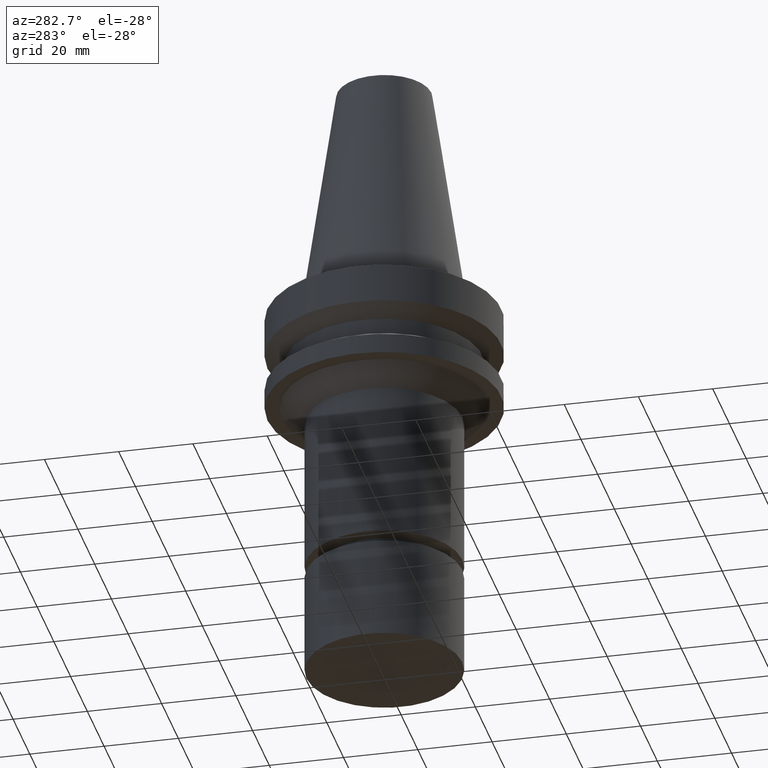
[diagram: clean part render]
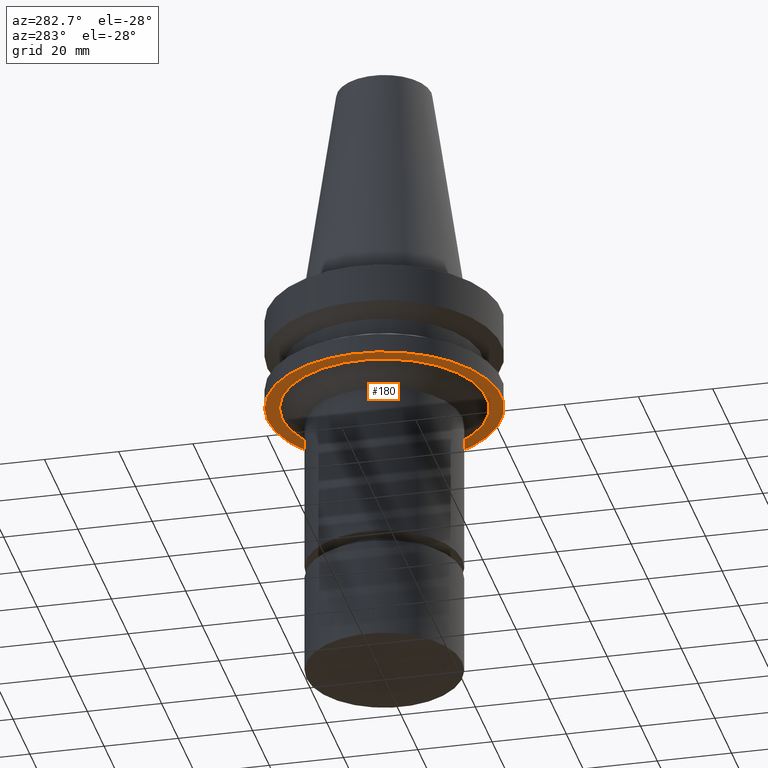
[diagram: same view with one face highlighted and labeled with its STEP entity id]
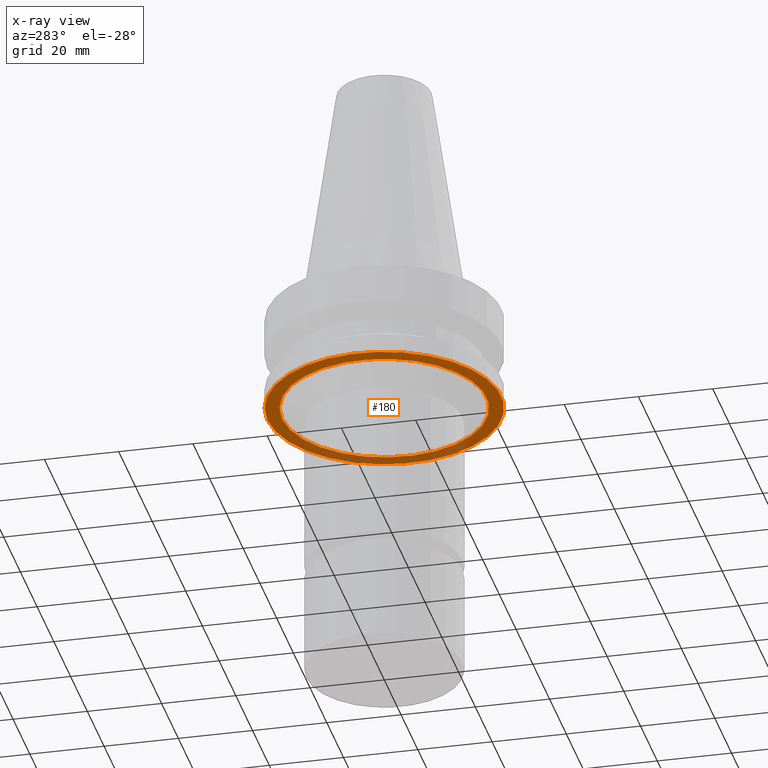
[diagram: x-ray of the same camera — body ghosted, the highlighted face saturated]
A machine part, auxiliary view. The second image highlights one B-rep face of the part: STEP entity #180.
The next image is the same camera in x-ray: the body ghosted, the highlighted face saturated — about 25% of this face is hidden behind the body in this view.
In plain terms, the highlighted planar face has unit normal (0, 0, -1).
Its self-contained STEP definition (entity closure, byte-faithful):
#102=EDGE_CURVE('Unnamed[1]',#240,#240,#241,.T.);
#166=EDGE_CURVE('Unnamed[1]',#341,#341,#342,.T.);
#180=ADVANCED_FACE('Unnamed[1]',(#361,#362),#363,.T.);
#240=VERTEX_POINT('',#425);
#241=CIRCLE('',#426,31.5000000000003);
#341=VERTEX_POINT('',#552);
#342=CIRCLE('',#553,27.5718520261655);
#361=FACE_BOUND('',#576,.T.);
#362=FACE_OUTER_BOUND('',#577,.T.);
#363=PLANE('',#578);
#425=CARTESIAN_POINT('',(1.65327317884891E-015,31.5000000000004,-26.9999999999998));
#426=AXIS2_PLACEMENT_3D('',#623,#624,#625);
#552=CARTESIAN_POINT('',(1.65327317884891E-015,27.5718520261655,-26.9999999999998));
#553=AXIS2_PLACEMENT_3D('',#736,#737,#738);
#576=EDGE_LOOP('',(#756));
#577=EDGE_LOOP('',(#757));
#578=AXIS2_PLACEMENT_3D('',#758,#759,#760);
#623=CARTESIAN_POINT('',(1.65327317884891E-015,6.49480099882418E-014,-26.9999999999998));
#624=DIRECTION('',(6.12323399573677E-017,-1.30838707338546E-016,-1.0));
#625=DIRECTION('',(3.18440747656793E-033,1.0,-1.30838707338546E-016));
#736=CARTESIAN_POINT('',(1.65327317884891E-015,6.49480099882417E-014,-26.9999999999998));
#737=DIRECTION('',(6.12323399573677E-017,-1.30838707338516E-016,-1.0));
#738=DIRECTION('',(3.18440747656626E-033,1.0,-1.30838707338516E-016));
#756=ORIENTED_EDGE('',*,*,#166,.F.);
#757=ORIENTED_EDGE('',*,*,#102,.T.);
#758=CARTESIAN_POINT('',(1.65327317884891E-015,29.535926013083,-26.9999999999998));
#759=DIRECTION('',(6.12323399573677E-017,2.83573849429106E-015,-1.0));
#760=DIRECTION('',(-1.78466056243393E-031,1.0,2.83573849429106E-015));